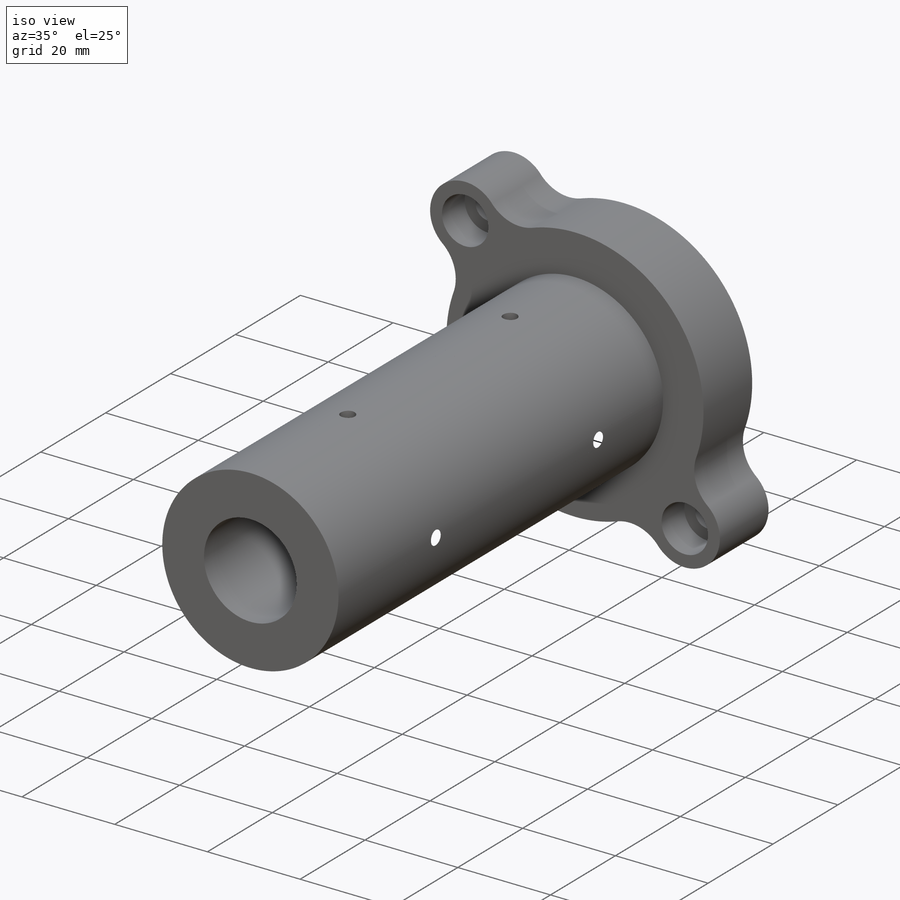
[diagram: iso view]
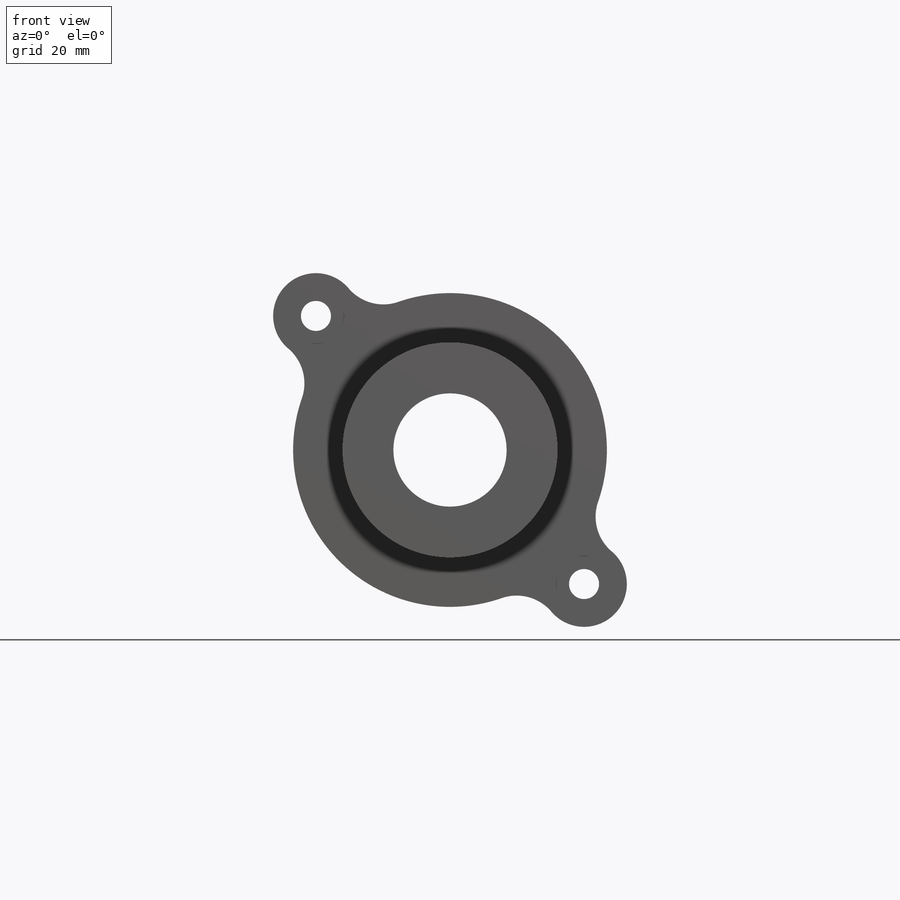
[diagram: front view]
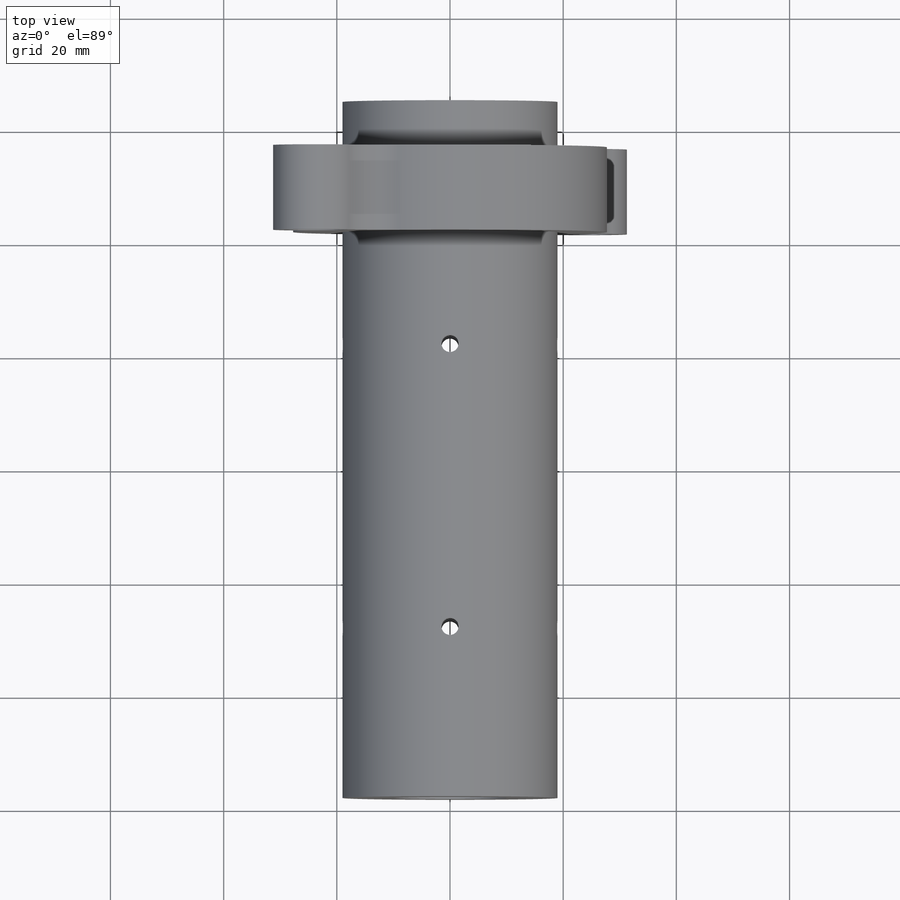
[diagram: top view]
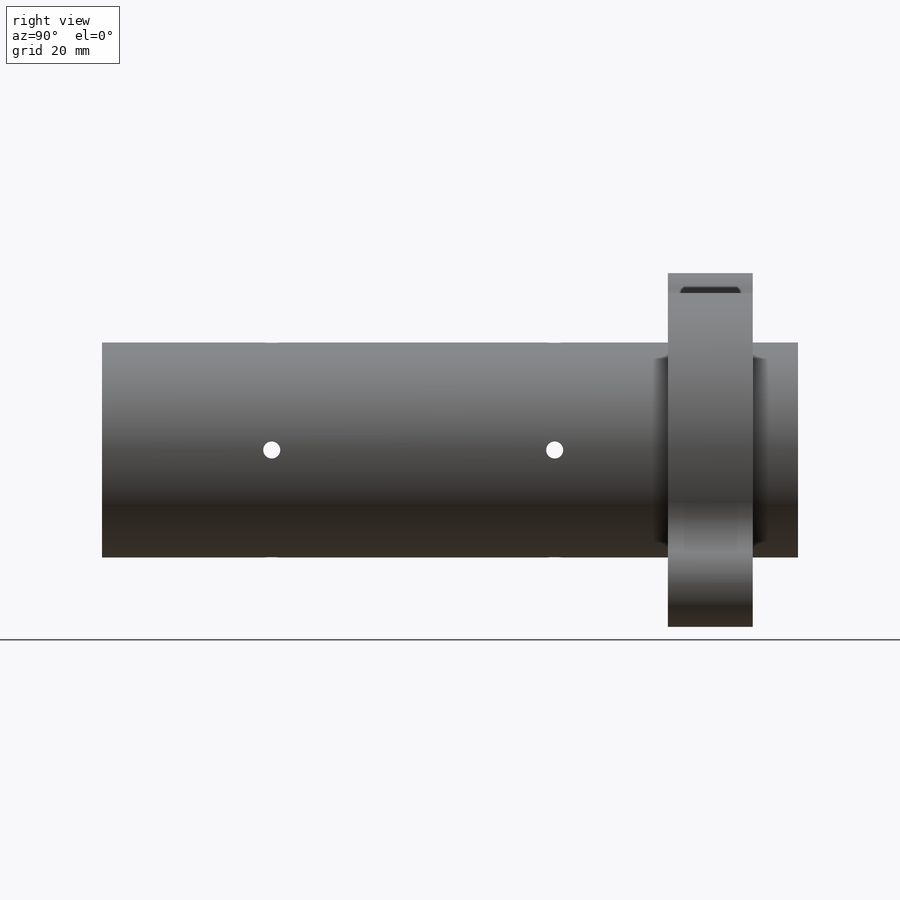
[diagram: right view]
SOLIDWORKS PART (.sldprt)
format: sldprt  version: not decoded by parser v0  size: 501,248 bytes
history: native  units: mm
features: sketch x6, plane x4, cut_extrude x4, extrude x2, material x1 (+10 scaffold rows collapsed)
feature tree (27):
  scaffold x10  (default folders/planes/origin — collapsed)
  material  "Matériau <non spécifié>"
  plane  "FRONT"
  plane  "TOP"
  plane  "RIGHT"
  plane  "Plan1"  Offset=838.2mm
  sketch  "Esquisse1"  dims[D2=2.55mm D1=67.0mm]
  extrude  "Boss.-Extru.1"  Depth=15mm
  sketch  "Esquisse9"  dims[D1=~8.950813mm]
  extrude  "Boss.-Extru.4"  Depth=100mm
  sketch  "Esquisse12"  dims[D1=9.05mm]
  cut_extrude  "Enlèv. mat.-Extru.2"  [1 undecoded]
  sketch  "Esquisse13"  dims[D1=~4.891676mm]
  cut_extrude  "Enlèv. mat.-Extru.3"  Depth=7mm
  sketch  "Esquisse14"  dims[D1=20.0mm D2=50.0mm]
  cut_extrude  "Enlèv. mat.-Extru.4"  Depth=7mm
  sketch  "Esquisse15"  dims[D1=20.0mm D2=50.0mm]
  cut_extrude  "Enlèv. mat.-Extru.5"  Depth=7mm
decode coverage: 11 of 12 modeling features carry decoded parameters
note: ~ marks probable driven/reference dimensions
note: 1 parameter value undecoded
note: suppression state not decoded; provenance and decode notes live in map.json
